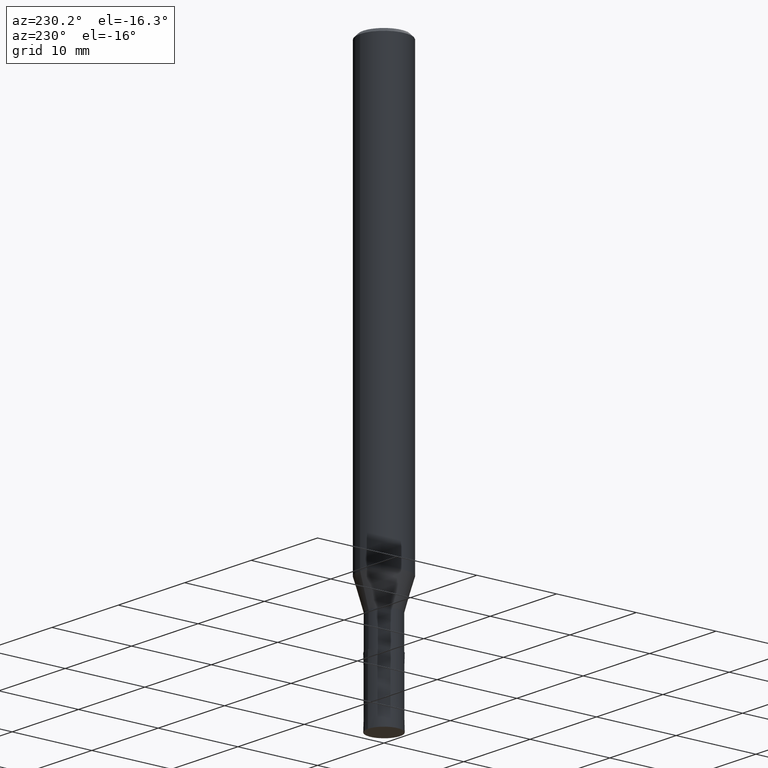
[diagram: clean part render]
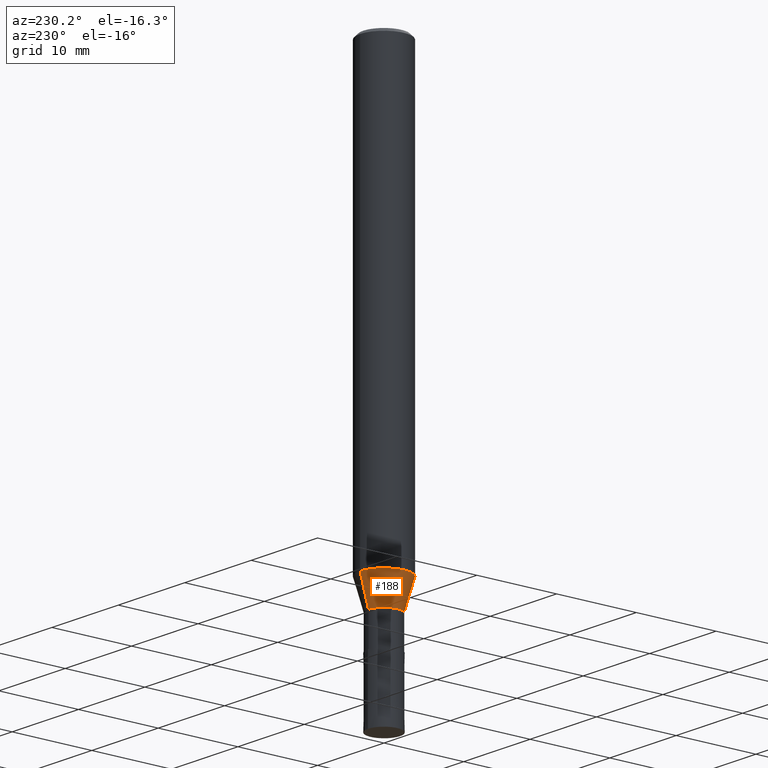
[diagram: same view with one face highlighted and labeled with its STEP entity id]
A machine part, auxiliary view. The second image highlights one B-rep face of the part: STEP entity #188.
In plain terms, the highlighted conical surface has half-angle 15.999 deg.
Its self-contained STEP definition (entity closure, byte-faithful):
#102=VERTEX_POINT('',#239);
#136=EDGE_CURVE('',#102,#152,#281,.T.);
#140=EDGE_CURVE('',#150,#148,#285,.T.);
#148=VERTEX_POINT('',#293);
#150=VERTEX_POINT('',#295);
#152=VERTEX_POINT('',#297);
#174=EDGE_CURVE('',#102,#148,#322,.T.);
#188=ADVANCED_FACE('',(#336),#337,.T.);
#208=EDGE_CURVE('',#152,#150,#361,.T.);
#239=CARTESIAN_POINT('',(2.38792115963595E-016,-1.94995,-58.0));
#281=LINE('',#440,#441);
#285=LINE('',#446,#447);
#293=CARTESIAN_POINT('',(0.0,1.94995,-58.0));
#295=CARTESIAN_POINT('',(0.0,2.99995,-54.338));
#297=CARTESIAN_POINT('',(3.67375783114944E-016,-2.99995,-54.338));
#322=CIRCLE('',#493,1.94995);
#336=FACE_OUTER_BOUND('',#512,.T.);
#337=CONICAL_SURFACE('',#513,2.47495,0.279237136194957);
#361=CIRCLE('',#540,2.99995);
#440=CARTESIAN_POINT('',(3.03083949539269E-016,-2.47495,-56.169));
#441=VECTOR('',#613,1.0);
#446=CARTESIAN_POINT('',(-3.03083949539269E-016,2.47495,-56.169));
#447=VECTOR('',#614,1.0);
#493=AXIS2_PLACEMENT_3D('',#648,#649,#650);
#512=EDGE_LOOP('',(#662,#663,#664,#665));
#513=AXIS2_PLACEMENT_3D('',#666,#667,#668);
#540=AXIS2_PLACEMENT_3D('',#711,#712,#713);
#613=DIRECTION('',(3.37528959210736E-017,-0.275622413812571,0.961265980363464));
#614=DIRECTION('',(3.37528959210736E-017,-0.275622413812571,-0.961265980363464));
#648=CARTESIAN_POINT('',(0.0,0.0,-58.0));
#649=DIRECTION('',(0.0,0.0,-1.0));
#650=DIRECTION('',(0.0,1.0,0.0));
#662=ORIENTED_EDGE('',*,*,#140,.T.);
#663=ORIENTED_EDGE('',*,*,#174,.F.);
#664=ORIENTED_EDGE('',*,*,#136,.T.);
#665=ORIENTED_EDGE('',*,*,#208,.T.);
#666=CARTESIAN_POINT('',(0.0,0.0,-56.169));
#667=DIRECTION('',(-0.0,-0.0,1.0));
#668=DIRECTION('',(0.0,1.0,0.0));
#711=CARTESIAN_POINT('',(0.0,0.0,-54.338));
#712=DIRECTION('',(0.0,0.0,-1.0));
#713=DIRECTION('',(0.0,1.0,0.0));